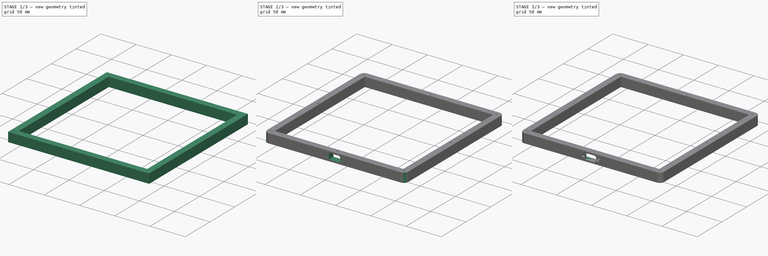
[diagram: build sequence overview — one tinted view per stage of 3, left to right]
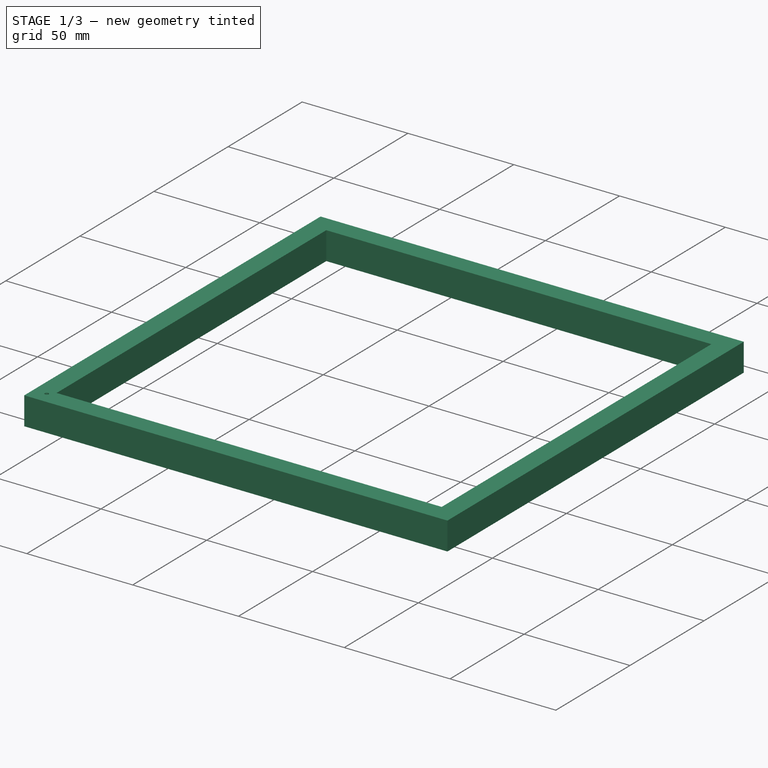
[diagram: stage 1 of 3 — iso view after this stage's code; geometry added in this stage tinted green]
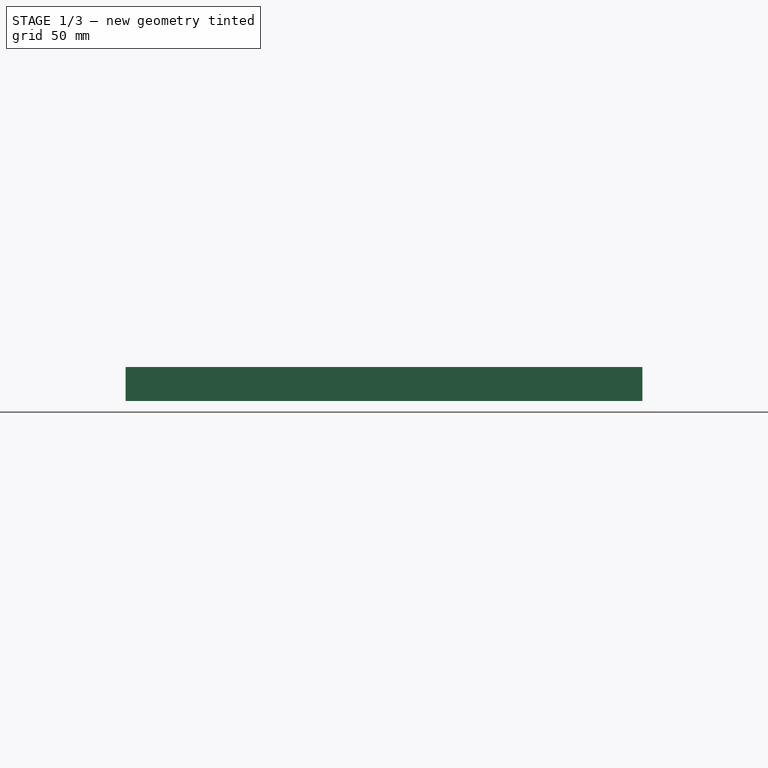
[diagram: stage 1 of 3 — front view after this stage's code; geometry added in this stage tinted green]
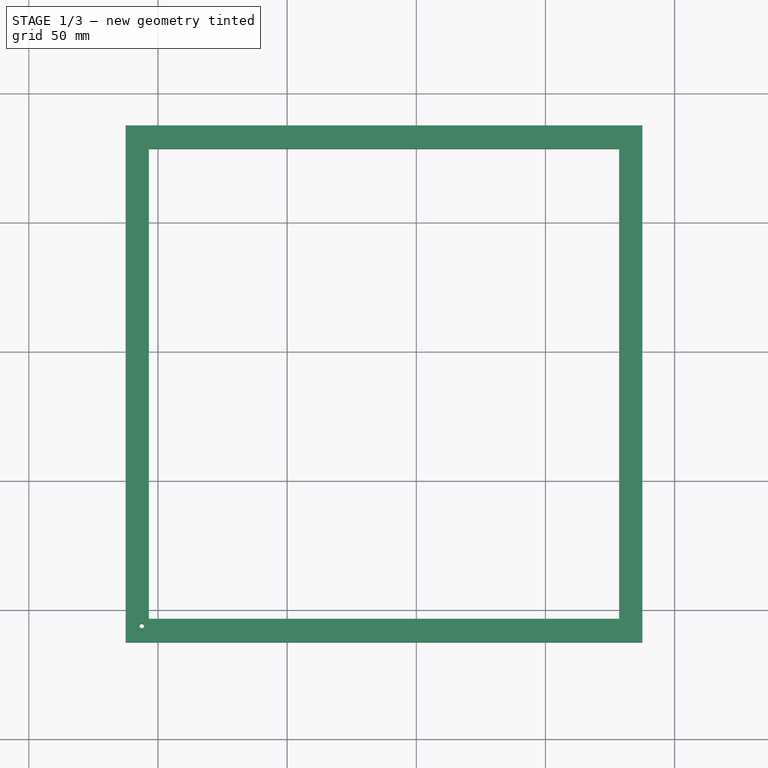
[diagram: stage 1 of 3 — top view after this stage's code; geometry added in this stage tinted green]
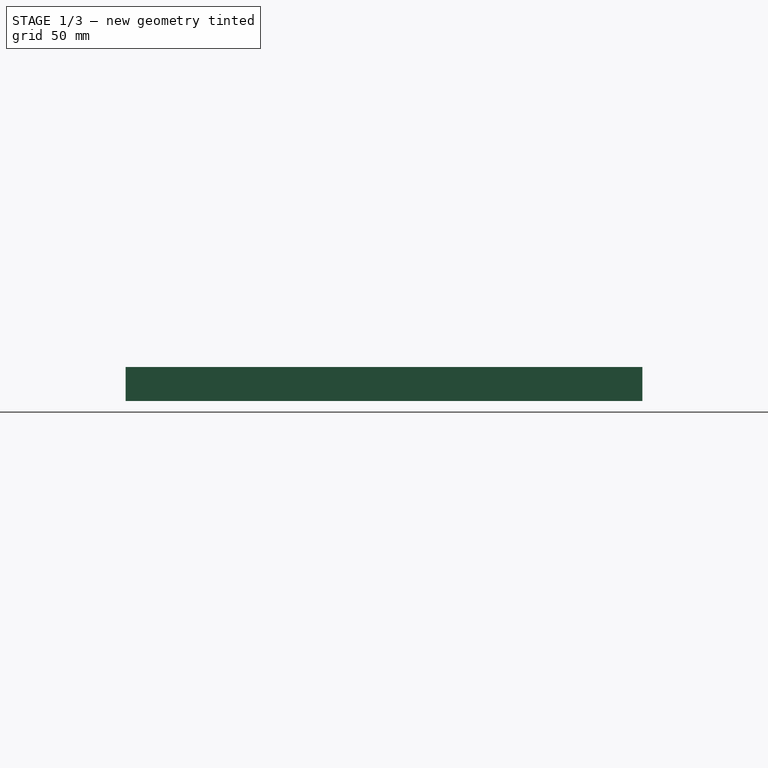
[diagram: stage 1 of 3 — right view after this stage's code; geometry added in this stage tinted green]
FCSTD DOCUMENT  (FreeCAD 0.20R29177 (Git))
Label: Rahmen
License: All rights reserved
LicenseURL: http://en.wikipedia.org/wiki/All_rights_reserved
objects: Sketcher::SketchObject×4, PartDesign::Pocket×3, App::Link×1, PartDesign::Pad×1, PartDesign::LinearPattern×1, PartDesign::PolarPattern×1, PartDesign::MultiTransform×1, PartDesign::Fillet×1, PartDesign::Chamfer×1, PartDesign::Body×1
note: 20 computed .brp shape members not serialized (recipe doc carries the construction recipe); baked Part::Feature solids carry a one-line shape summary decoded from their .brp
EXTERNAL_REF file=Deckplatte.FCStd obj=Spreadsheet

FEATURE [App::Link] Link001  label="Spreadsheet"
  LinkedObject = -> <external Deckplatte.FCStd>#Spreadsheet
FEATURE [Sketcher::SketchObject] Sketch
  FullyConstrained = true
  MapMode = 5
  Support = -> [XY_Plane]
  expr: Constraints[15] = <<Spreadsheet>>.rand
  expr: Constraints[16] = 2 * <<Spreadsheet>>.rand + <<Spreadsheet>>.num_buttons * <<Spreadsheet>>.b_size + <<Spreadsheet>>.b_space * (<<Spreadsheet>>.num_buttons - 1)
  expr: Constraints[40] = <<Spreadsheet>>.b_space / 2 + 1
  sketch-geometry (14):
    g0: LineSegment StartX=-12.5 StartY=-12.5 StartZ=0 EndX=187.5 EndY=-12.5 EndZ=0
    g1: LineSegment StartX=187.5 StartY=-12.5 StartZ=0 EndX=187.5 EndY=187.5 EndZ=0
    g2: LineSegment StartX=187.5 StartY=187.5 StartZ=0 EndX=-12.5 EndY=187.5 EndZ=0
    g3: LineSegment StartX=-12.5 StartY=187.5 StartZ=0 EndX=-12.5 EndY=-12.5 EndZ=0
    g4: LineSegment StartX=-12.5 StartY=0 StartZ=0 EndX=0 EndY=0 EndZ=0
    g5: LineSegment StartX=0 StartY=0 StartZ=0 EndX=0 EndY=-12.5 EndZ=0
    g6: LineSegment StartX=-3.5 StartY=-3.5 StartZ=0 EndX=178.5 EndY=-3.5 EndZ=0
    g7: LineSegment StartX=178.5 StartY=-3.5 StartZ=0 EndX=178.5 EndY=178.5 EndZ=0
    g8: LineSegment StartX=178.5 StartY=178.5 StartZ=0 EndX=-3.5 EndY=178.5 EndZ=0
    g9: LineSegment StartX=-3.5 StartY=178.5 StartZ=0 EndX=-3.5 EndY=-3.5 EndZ=0
    g10: LineSegment StartX=-12.5 StartY=-3.5 StartZ=0 EndX=-3.5 EndY=-3.5 EndZ=0
    g11: LineSegment StartX=-3.5 StartY=-3.5 StartZ=0 EndX=-3.5 EndY=-12.5 EndZ=0
    g12: LineSegment StartX=178.5 StartY=187.5 StartZ=0 EndX=178.5 EndY=178.5 EndZ=0
    g13: LineSegment StartX=178.5 StartY=178.5 StartZ=0 EndX=187.5 EndY=178.5 EndZ=0
  constraints (42):
    c: Coincident(g0,g1)
    c: Coincident(g1,g2)
    c: Coincident(g2,g3)
    c: Coincident(g3,g0)
    c: Horizontal(g0)
    c: Horizontal(g2)
    c: Vertical(g1)
    c: Vertical(g3)
    c: Equal(g1,g2)
    c: PointOnObject(g4,g3)
    c: Coincident(g4,g-1)
    c: Coincident(g4,g5)
    c: PointOnObject(g5,g0)
    c: Vertical(g5)
    c: Horizontal(g4)
    c: DistanceX(g4,g4) = 12.5
    c: DistanceX(g0,g0) = 200
    c: Equal(g5,g4)
    c: Coincident(g6,g7)
    c: Coincident(g7,g8)
    c: Coincident(g8,g9)
    c: Coincident(g9,g6)
    c: Horizontal(g6)
    c: Horizontal(g8)
    c: Vertical(g7)
    c: Vertical(g9)
    c: PointOnObject(g10,g3)
    c: Coincident(g10,g6)
    c: Horizontal(g10)
    c: Coincident(g10,g11)
    c: PointOnObject(g11,g0)
    c: Vertical(g11)
    c: PointOnObject(g12,g2)
    c: Vertical(g12)
    c: Coincident(g12,g13)
    c: PointOnObject(g13,g1)
    c: Horizontal(g13)
    c: Equal(g13,g12)
    c: Equal(g12,g10)
    c: Equal(g10,g11)
    c: DistanceX(g6,g4) = 3.5
    c: Coincident(g12,g7)
FEATURE [PartDesign::Pad] Pad
  Direction = (0,0,1)
  Length = 13.2
  Length2 = 10
  Profile = -> Sketch
  ReferenceAxis = -> Sketch [N_Axis]
  Type = 0
FEATURE [Sketcher::SketchObject] Sketch001
  AttachmentOffset = pos=(87.5,87.5,0) rot=(0,0,1;0rad)
  FullyConstrained = true
  MapMode = 5
  Placement = pos=(87.5,87.5,0) rot=(0,0,1;0rad)
  Support = -> [XY_Plane]
  expr: .AttachmentOffset.Base.x = <<Spreadsheet>>.num_modules / 2 * 4 * (<<Spreadsheet>>.b_size + <<Spreadsheet>>.b_space) - <<Spreadsheet>>.b_space / 2
  expr: .AttachmentOffset.Base.y = <<Spreadsheet>>.num_modules / 2 * 4 * (<<Spreadsheet>>.b_size + <<Spreadsheet>>.b_space) - <<Spreadsheet>>.b_space / 2
  expr: Constraints[7] = <<Spreadsheet>>.rand / 2 + <<Spreadsheet>>.num_modules / 2 * 4 * (<<Spreadsheet>>.b_size + <<Spreadsheet>>.b_space) - <<Spreadsheet>>.b_space / 2
  expr: Constraints[8] = <<Spreadsheet>>.d_schraube
  sketch-geometry (3):
    g0: LineSegment StartX=-93.75 StartY=0 StartZ=0 EndX=-93.75 EndY=-93.75 EndZ=0
    g1: LineSegment StartX=-93.75 StartY=-93.75 StartZ=0 EndX=0 EndY=-93.75 EndZ=0
    g2: Circle CenterX=-93.75 CenterY=-93.75 CenterZ=0 NormalX=0 NormalY=0 NormalZ=1 AngleXU=0 Radius=0.9
  constraints (9):
    c: PointOnObject(g0,g-1)
    c: Vertical(g0)
    c: Coincident(g0,g1)
    c: PointOnObject(g1,g-2)
    c: Horizontal(g1)
    c: Equal(g1,g0)
    c: Coincident(g2,g0)
    c: DistanceX(g1,g1) = 93.75
    c: Diameter(g2) = 1.8
FEATURE [PartDesign::Pocket] Pocket
  BaseFeature = -> Pad
  Direction = (0,0,-1)
  Length = 5
  Length2 = 5
  Profile = -> Sketch001
  ReferenceAxis = -> Sketch001 [N_Axis]
  Reversed = true
  Type = 1
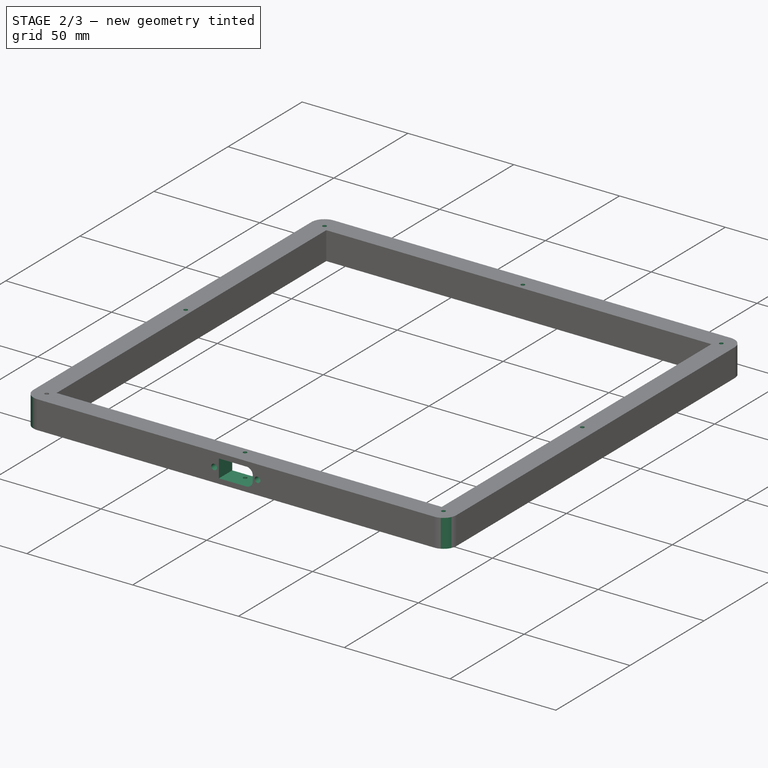
[diagram: stage 2 of 3 — iso view after this stage's code; geometry added in this stage tinted green]
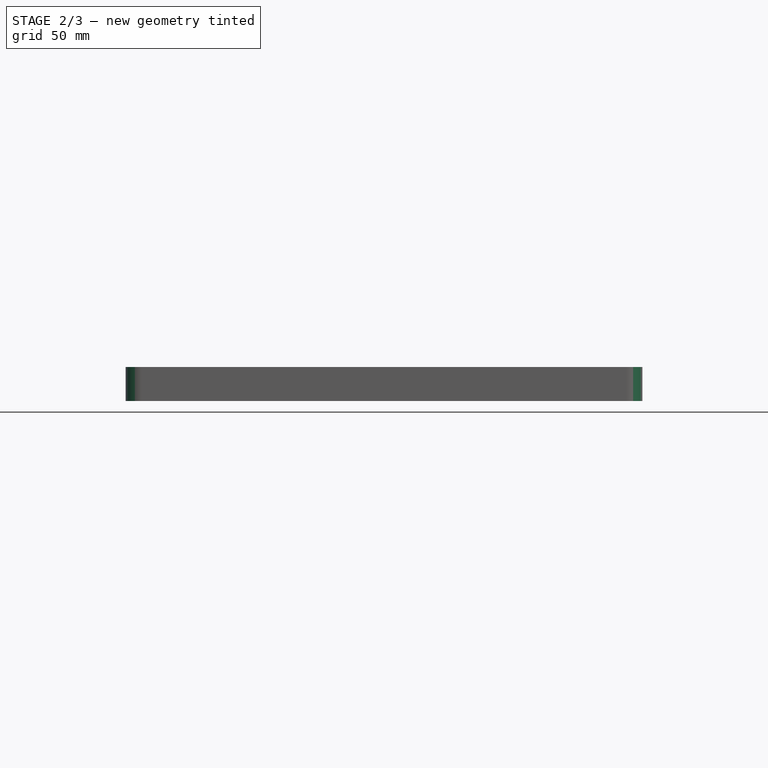
[diagram: stage 2 of 3 — front view after this stage's code; geometry added in this stage tinted green]
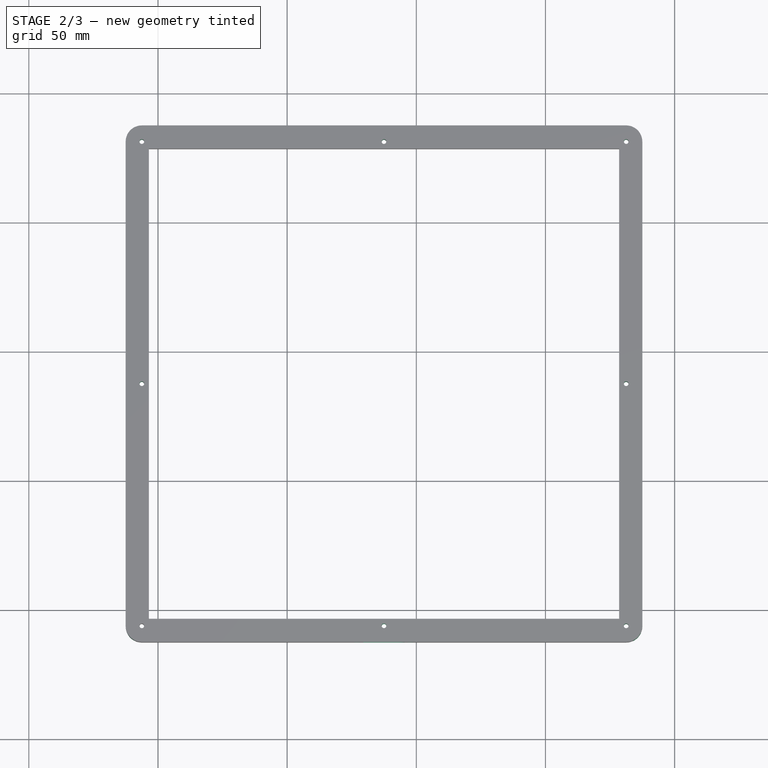
[diagram: stage 2 of 3 — top view after this stage's code; geometry added in this stage tinted green]
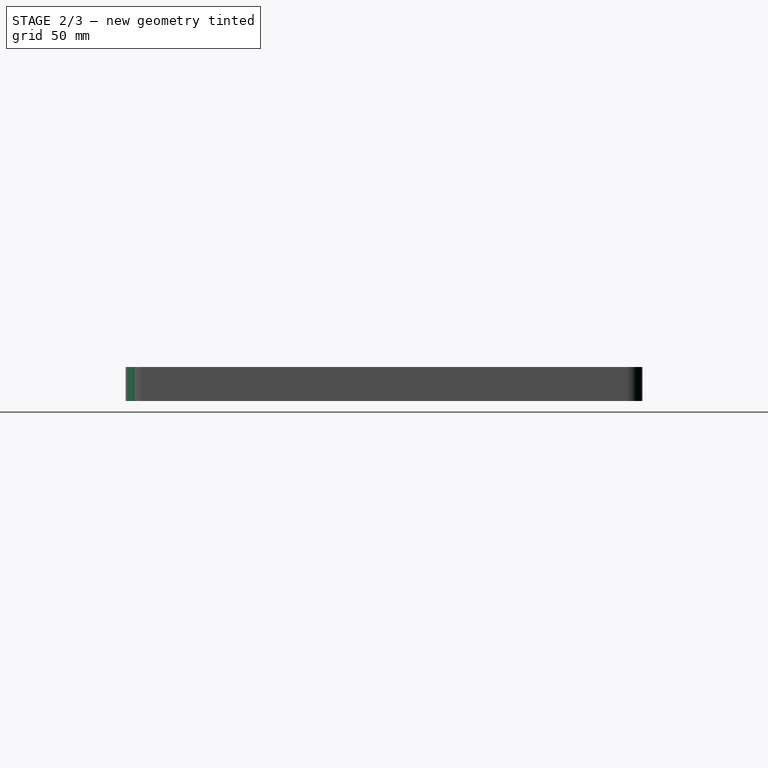
[diagram: stage 2 of 3 — right view after this stage's code; geometry added in this stage tinted green]
FEATURE [PartDesign::LinearPattern] LinearPattern
  Direction = -> Sketch001 [H_Axis]
  Length = 93.75
  Occurrences = 2
  expr: Length = (<<Spreadsheet>>.rand - <<Spreadsheet>>.b_space) / 2 + <<Spreadsheet>>.num_modules / 2 * 4 * (<<Spreadsheet>>.b_size + <<Spreadsheet>>.b_space)
FEATURE [PartDesign::PolarPattern] PolarPattern
  Angle = 360
  Axis = -> Sketch001 [N_Axis]
  Occurrences = 4
FEATURE [PartDesign::MultiTransform] MultiTransform
  BaseFeature = -> Pocket
  Originals = -> [Pocket]
  Transformations = -> [LinearPattern,PolarPattern]
FEATURE [PartDesign::Fillet] Fillet
  Base = -> MultiTransform [Edge5,Edge1,Edge2,Edge8]
  BaseFeature = -> MultiTransform
  Radius = 6.25
  SupportTransform = false
  UseAllEdges = false
  expr: Radius = <<Spreadsheet>>.r_ecke
FEATURE [Sketcher::SketchObject] Sketch002
  AttachmentOffset = pos=(87.5,6.6,12.5) rot=(0,0,1;0rad)
  FullyConstrained = true
  MapMode = 5
  Placement = pos=(87.5,-12.5,6.6) rot=(1,0,0;1.5708rad)
  Support = -> [XZ_Plane]
  expr: .AttachmentOffset.Base.x = <<Spreadsheet>>.num_modules / 2 * 4 * (<<Spreadsheet>>.b_size + <<Spreadsheet>>.b_space) - <<Spreadsheet>>.b_space / 2
  expr: .AttachmentOffset.Base.y = Pad.Length / 2
  expr: .AttachmentOffset.Base.z = <<Spreadsheet>>.rand
  sketch-geometry (10):
    g0: LineSegment StartX=-8 StartY=4.25 StartZ=0 EndX=5 EndY=4.25 EndZ=0
    g1: LineSegment StartX=8 StartY=1.25 StartZ=0 EndX=8 EndY=-1.25 EndZ=0
    g2: LineSegment StartX=5 StartY=-4.25 StartZ=0 EndX=-8 EndY=-4.25 EndZ=0
    g3: LineSegment StartX=-8 StartY=-4.25 StartZ=0 EndX=-8 EndY=4.25 EndZ=0
    g4: ArcOfCircle CenterX=5 CenterY=1.25 CenterZ=0 NormalX=0 NormalY=0 NormalZ=1 AngleXU=0 Radius=3 StartAngle=0 EndAngle=1.5708
    g5: GeomPoint X=8 Y=4.25 Z=0
    g6: ArcOfCircle CenterX=5 CenterY=-1.25 CenterZ=0 NormalX=0 NormalY=0 NormalZ=1 AngleXU=0 Radius=3 StartAngle=4.71239 EndAngle=6.28319
    g7: GeomPoint X=8 Y=-4.25 Z=0
    g8: Circle CenterX=-10.25 CenterY=0 CenterZ=0 NormalX=0 NormalY=0 NormalZ=1 AngleXU=0 Radius=1.35
    g9: Circle CenterX=10.25 CenterY=0 CenterZ=0 NormalX=0 NormalY=0 NormalZ=1 AngleXU=0 Radius=1.35
  constraints (23):
    c: Coincident(g2,g3)
    c: Coincident(g3,g0)
    c: Horizontal(g0)
    c: Horizontal(g2)
    c: Vertical(g1)
    c: PointOnObject(g5,g1)
    c: Tangent(g0,g4) = 1.5708
    c: Tangent(g1,g4) = 1.5708
    c: PointOnObject(g7,g1)
    c: PointOnObject(g7,g2)
    c: Tangent(g1,g6) = 1.5708
    c: Tangent(g2,g6) = 1.5708
    c: Symmetric(g0,g2,g-1)
    c: Symmetric(g0,g5,g-2)
    c: Equal(g6,g4)
    c: DistanceX(g0,g5) = 16
    c: Radius(g4) = 3
    c: DistanceY(g3,g3) = 8.5
    c: PointOnObject(g8,g-1)
    c: Equal(g9,g8)
    c: Symmetric(g9,g8,g-2)
    c: DistanceX(g8,g9) = 20.5
    c: Diameter(g9) = 2.7
FEATURE [PartDesign::Pocket] Pocket001
  BaseFeature = -> Fillet
  Direction = (0,1,2e-16)
  Length = 12.5
  Length2 = 5
  Profile = -> Sketch002
  ReferenceAxis = -> Sketch002 [N_Axis]
  Type = 0
  expr: Length = <<Spreadsheet>>.rand
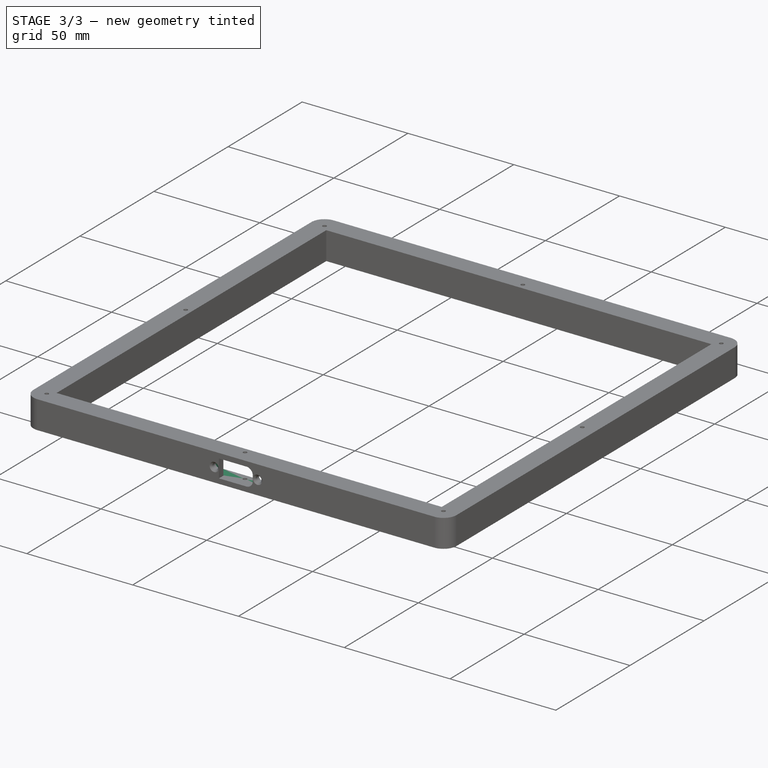
[diagram: stage 3 of 3 — iso view after this stage's code; geometry added in this stage tinted green]
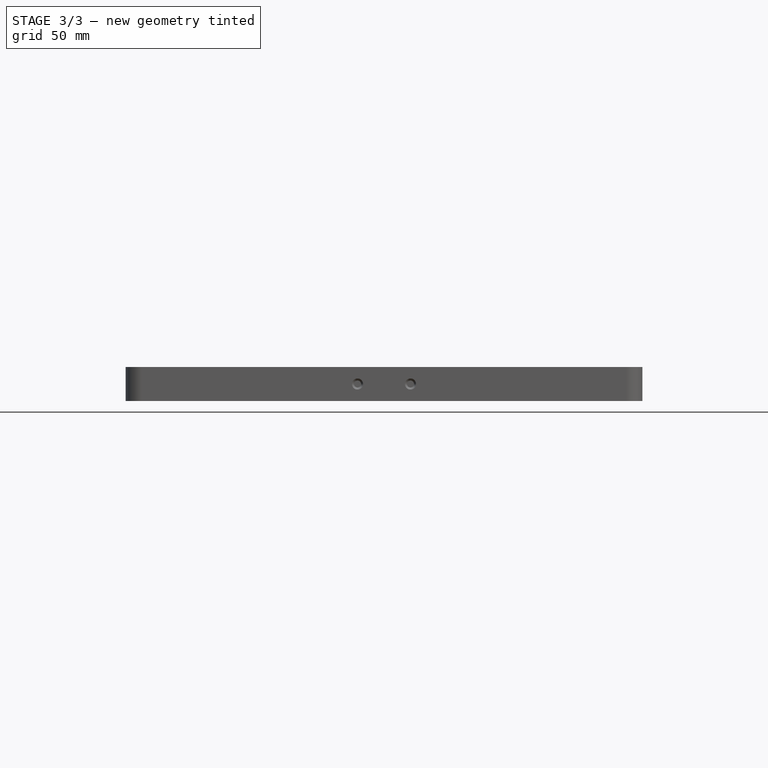
[diagram: stage 3 of 3 — front view after this stage's code; geometry added in this stage tinted green]
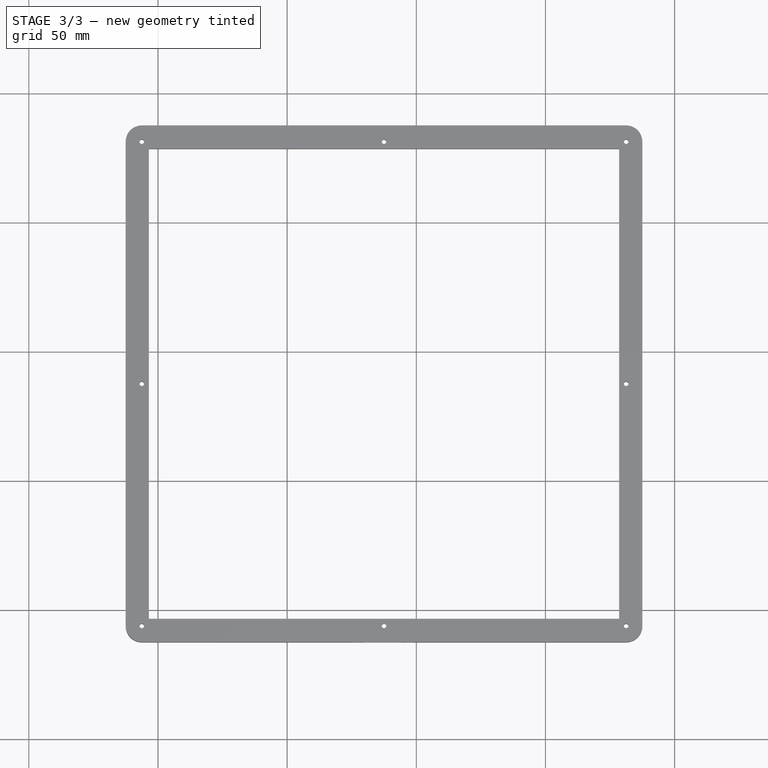
[diagram: stage 3 of 3 — top view after this stage's code; geometry added in this stage tinted green]
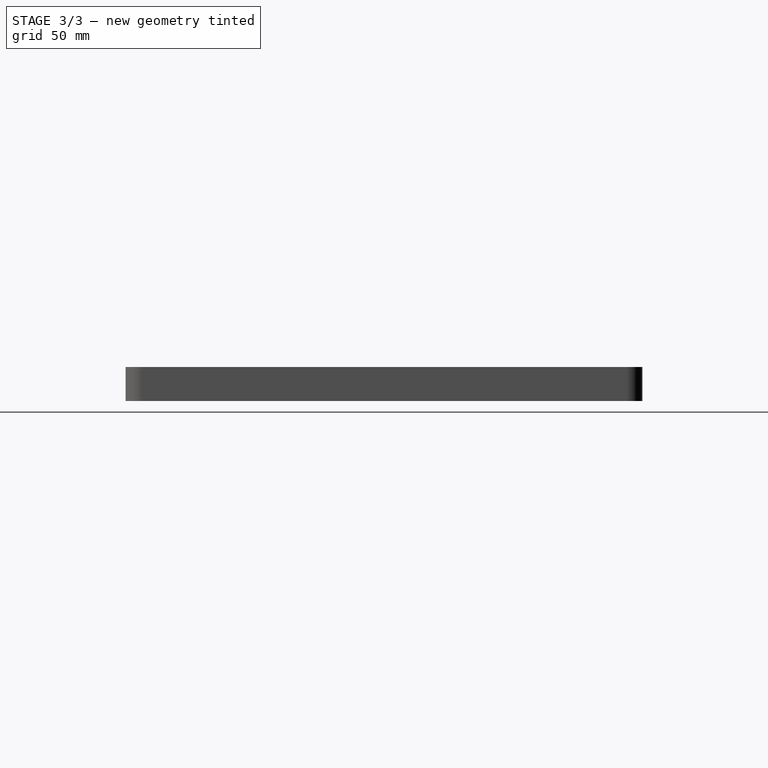
[diagram: stage 3 of 3 — right view after this stage's code; geometry added in this stage tinted green]
FEATURE [Sketcher::SketchObject] Sketch003
  AttachmentOffset = pos=(87.5,6.6,9.5) rot=(0,0,1;0rad)
  FullyConstrained = true
  MapMode = 5
  Placement = pos=(87.5,-9.5,6.6) rot=(1,0,0;1.5708rad)
  Support = -> [XZ_Plane]
  expr: .AttachmentOffset.Base.x = <<Spreadsheet>>.num_modules / 2 * 4 * (<<Spreadsheet>>.b_size + <<Spreadsheet>>.b_space) - <<Spreadsheet>>.b_space / 2
  expr: .AttachmentOffset.Base.y = Pad.Length / 2
  expr: .AttachmentOffset.Base.z = <<Spreadsheet>>.rand - 3
  sketch-geometry (12):
    g0: LineSegment StartX=-12.75 StartY=-4.75 StartZ=0 EndX=12.75 EndY=-4.75 EndZ=0
    g1: LineSegment StartX=13.75 StartY=-3.75 StartZ=0 EndX=13.75 EndY=3.75 EndZ=0
    g2: LineSegment StartX=12.75 StartY=4.75 StartZ=0 EndX=-12.75 EndY=4.75 EndZ=0
    g3: LineSegment StartX=-13.75 StartY=3.75 StartZ=0 EndX=-13.75 EndY=-3.75 EndZ=0
    g4: ArcOfCircle CenterX=-12.75 CenterY=3.75 CenterZ=0 NormalX=0 NormalY=0 NormalZ=1 AngleXU=0 Radius=1 StartAngle=1.5708 EndAngle=3.14159
    g5: GeomPoint X=-13.75 Y=4.75 Z=0
    g6: ArcOfCircle CenterX=-12.75 CenterY=-3.75 CenterZ=0 NormalX=0 NormalY=0 NormalZ=1 AngleXU=0 Radius=1 StartAngle=3.14159 EndAngle=4.71239
    g7: GeomPoint X=-13.75 Y=-4.75 Z=0
    g8: ArcOfCircle CenterX=12.75 CenterY=-3.75 CenterZ=0 NormalX=0 NormalY=0 NormalZ=1 AngleXU=0 Radius=1 StartAngle=4.71239 EndAngle=6.28319
    g9: GeomPoint X=13.75 Y=-4.75 Z=0
    g10: ArcOfCircle CenterX=12.75 CenterY=3.75 CenterZ=0 NormalX=0 NormalY=0 NormalZ=1 AngleXU=0 Radius=1 StartAngle=0 EndAngle=1.5708
    g11: GeomPoint X=13.75 Y=4.75 Z=0
  constraints (26):
    c: Horizontal(g0)
    c: Vertical(g3)
    c: Symmetric(g11,g5,g-2)
    c: Symmetric(g11,g9,g-1)
    c: DistanceX(g5,g11) = 27.5
    c: DistanceY(g9,g11) = 9.5
    c: PointOnObject(g5,g2)
    c: PointOnObject(g5,g3)
    c: Tangent(g2,g4) = -1.5708
    c: Tangent(g3,g4) = -1.5708
    c: PointOnObject(g7,g0)
    c: PointOnObject(g7,g3)
    c: Tangent(g0,g6) = -1.5708
    c: Tangent(g3,g6) = -1.5708
    c: PointOnObject(g9,g0)
    c: PointOnObject(g9,g1)
    c: Tangent(g0,g8) = -1.5708
    c: Tangent(g1,g8) = -1.5708
    c: PointOnObject(g11,g1)
    c: PointOnObject(g11,g2)
    c: Tangent(g1,g10) = -1.5708
    c: Tangent(g2,g10) = -1.5708
    c: Equal(g6,g4)
    c: Equal(g4,g10)
    c: Equal(g10,g8)
    c: Radius(g10) = 1
FEATURE [PartDesign::Pocket] Pocket002
  BaseFeature = -> Pocket001
  Direction = (0,1,2e-16)
  Length = 12.5
  Length2 = 5
  Profile = -> Sketch003
  ReferenceAxis = -> Sketch003 [N_Axis]
  Refine = true
  Type = 0
  expr: Length = <<Spreadsheet>>.rand
FEATURE [PartDesign::Chamfer] Chamfer
  Angle = 45
  Base = -> Pocket002 [Edge5,Edge12]
  BaseFeature = -> Pocket002
  ChamferType = 0
  FlipDirection = false
  Size = 0.8
  Size2 = 1
  SupportTransform = false
  UseAllEdges = false
FEATURE [PartDesign::Body] Body  label="Rahmen"
  Group = -> [Sketch,Pad,Sketch001,Pocket,MultiTransform,LinearPattern,PolarPattern,Fillet,Sketch002,Pocket001,Sketch003,Pocket002,Chamfer]
  Origin = -> Origin
  Tip = -> Chamfer
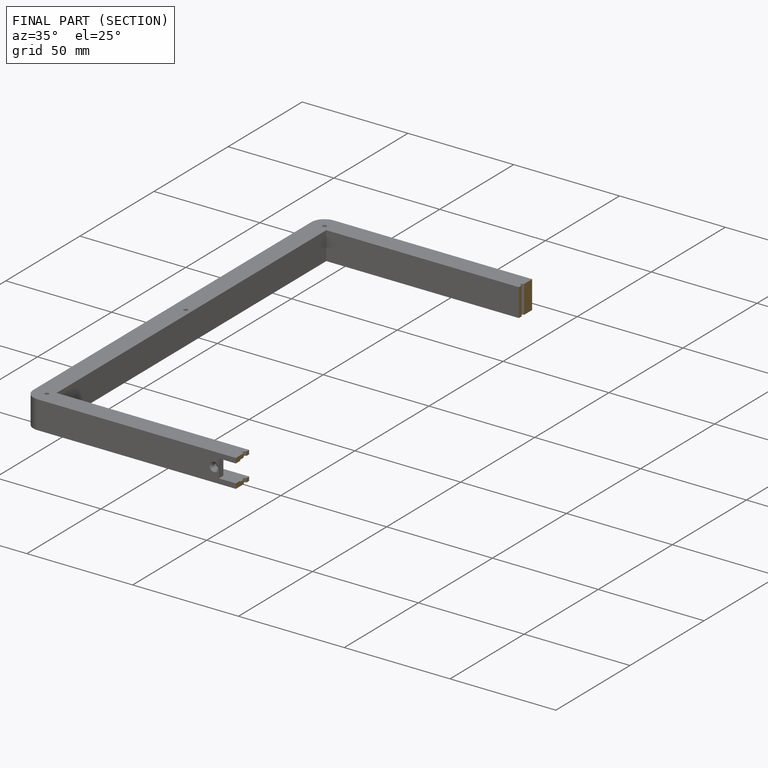
[diagram: finished part — half-section view (interior)]
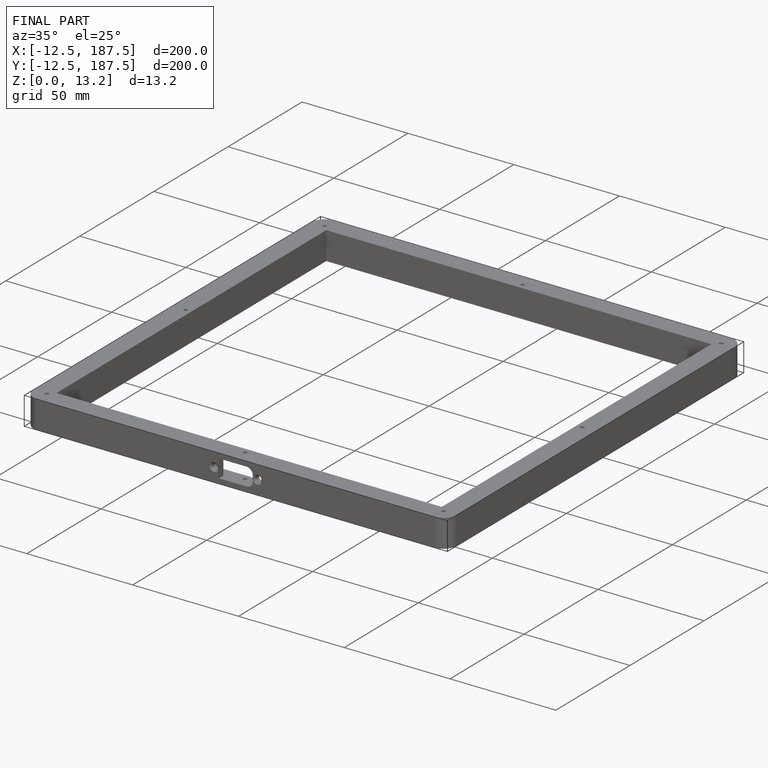
[diagram: finished part — iso view with bounding-box wireframe]
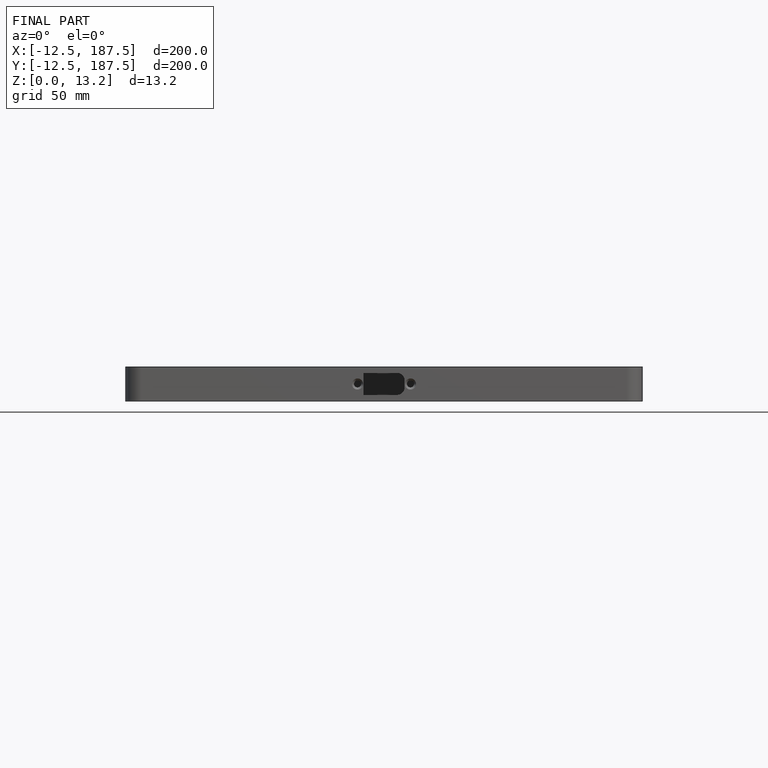
[diagram: finished part — front view with bounding-box wireframe]
